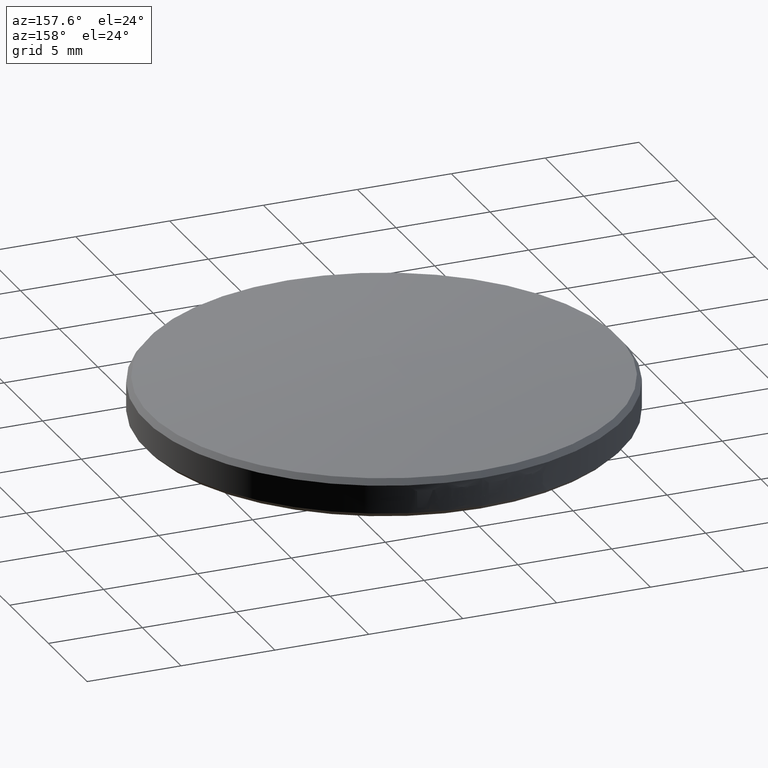
[diagram: clean part render]
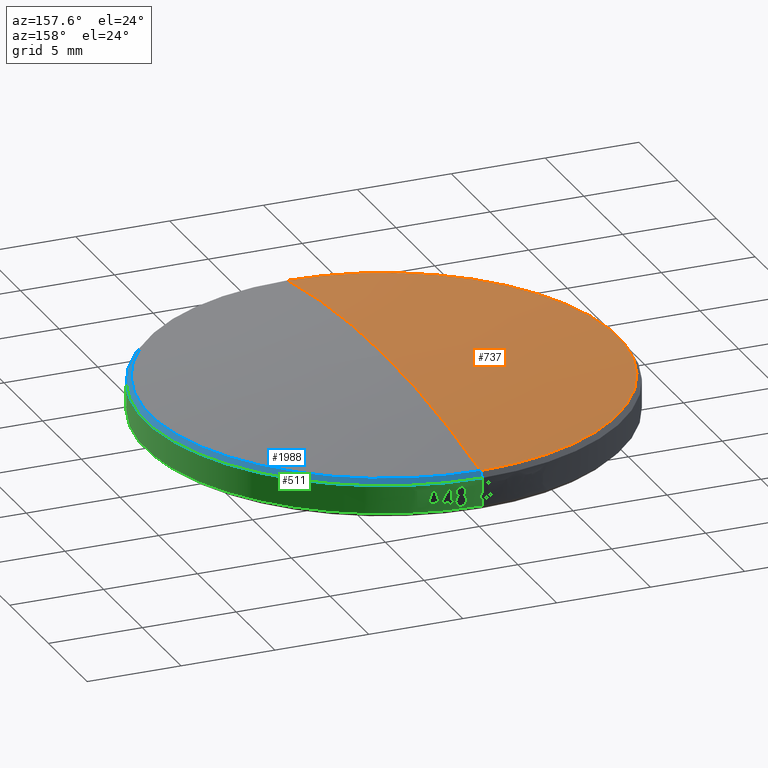
[diagram: same view with three faces highlighted in distinct colors, each labeled with its STEP entity id]
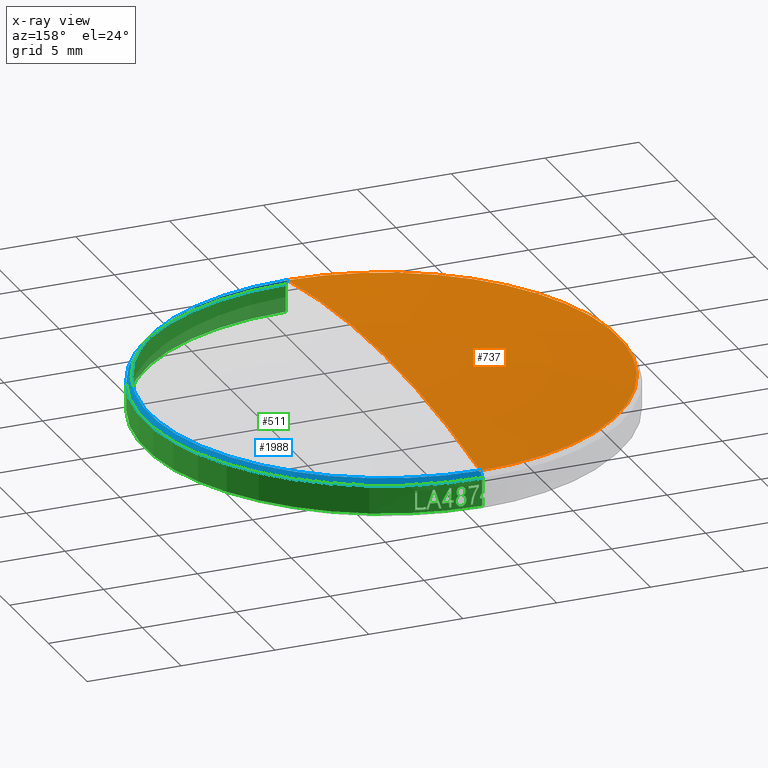
[diagram: x-ray of the same camera — body ghosted, the three highlighted faces saturated]
A machine part, auxiliary view with three faces highlighted in distinct colors.
The next image is the same camera in x-ray (body ghosted, the three faces saturated) — at least one of them is partly hidden behind the body in this view.
Their STEP definitions:

[orange] entity #737 — the highlighted toroidal blend (fillet) surface has major radius 0.0463 mm and minor (blend) radius 69.01 mm.
#3 = ORIENTED_EDGE ( 'NONE', *, *, #2574, .T. ) ;
#190 = EDGE_CURVE ( 'NONE', #516, #196, #244, .T. ) ;
#196 = VERTEX_POINT ( 'NONE', #910 ) ;
#198 = FACE_OUTER_BOUND ( 'NONE', #1323, .T. ) ;
#244 = CIRCLE ( 'NONE', #2479, 2.716929133858268397 ) ;
#294 = DIRECTION ( 'NONE',  ( -0.0000000000000000000, 1.224646799147353207E-16, -1.000000000000000000 ) ) ;
#371 = ORIENTED_EDGE ( 'NONE', *, *, #190, .F. ) ;
#414 = TOROIDAL_SURFACE ( 'NONE', #2044, 0.001822084931447549589, 2.716929133858268397 ) ;
#494 = CARTESIAN_POINT ( 'NONE',  ( -0.01648550022812553251, 0.8537685930331552209, 0.8165851593906512385 ) ) ;
#505 = DIRECTION ( 'NONE',  ( 0.0000000000000000000, 0.0000000000000000000, 1.000000000000000000 ) ) ;
#516 = VERTEX_POINT ( 'NONE', #2307 ) ;
#538 = ORIENTED_EDGE ( 'NONE', *, *, #1987, .T. ) ;
#675 = DIRECTION ( 'NONE',  ( 0.0000000000000000000, -1.224646799147368245E-16, 1.000000000000000000 ) ) ;
#737 = ADVANCED_FACE ( 'NONE', ( #198 ), #414, .T. ) ;
#770 = CARTESIAN_POINT ( 'NONE',  ( -0.01648550022812553251, 0.8537685930331554429, -1.856063734372559892 ) ) ;
#902 = DIRECTION ( 'NONE',  ( 0.0000000000000000000, 1.000000000000000000, 0.0000000000000000000 ) ) ;
#910 = CARTESIAN_POINT ( 'NONE',  ( -0.01648550022812547353, 0.3634264889887492411, 0.8165851593906510164 ) ) ;
#993 = DIRECTION ( 'NONE',  ( 0.0000000000000000000, 1.000000000000000000, 1.224646799147353207E-16 ) ) ;
#1116 = DIRECTION ( 'NONE',  ( 1.000000000000000000, 1.224646799147353207E-16, 1.499759782661857608E-32 ) ) ;
#1155 = DIRECTION ( 'NONE',  ( -1.000000000000000000, 0.0000000000000000000, 0.0000000000000000000 ) ) ;
#1323 = EDGE_LOOP ( 'NONE', ( #371, #3, #538 ) ) ;
#1822 = AXIS2_PLACEMENT_3D ( 'NONE', #494, #675, #902 ) ;
#1984 = CARTESIAN_POINT ( 'NONE',  ( -0.01648550022812553251, 1.344110697077561367, 0.8165851593906510164 ) ) ;
#1987 = EDGE_CURVE ( 'NONE', #2038, #196, #2321, .T. ) ;
#2003 = CARTESIAN_POINT ( 'NONE',  ( -0.01648550022812553251, 0.8555906779646029747, -1.856063734372559892 ) ) ;
#2038 = VERTEX_POINT ( 'NONE', #1984 ) ;
#2044 = AXIS2_PLACEMENT_3D ( 'NONE', #770, #294, #993 ) ;
#2307 = CARTESIAN_POINT ( 'NONE',  ( -0.01648550022812553251, 0.8537685930331552209, 0.8608647885029209190 ) ) ;
#2321 = CIRCLE ( 'NONE', #1822, 0.4903421040444047585 ) ;
#2376 = AXIS2_PLACEMENT_3D ( 'NONE', #2003, #1155, #505 ) ;
#2479 = AXIS2_PLACEMENT_3D ( 'NONE', #2640, #1116, #2630 ) ;
#2574 = EDGE_CURVE ( 'NONE', #516, #2038, #2579, .T. ) ;
#2579 = CIRCLE ( 'NONE', #2376, 2.716929133858268397 ) ;
#2630 = DIRECTION ( 'NONE',  ( -1.225442246831898799E-16, 1.000000000000000000, 0.0000000000000000000 ) ) ;
#2640 = CARTESIAN_POINT ( 'NONE',  ( -0.01648550022812553251, 0.8519465081017079111, -1.856063734372559892 ) ) ;

[blue] entity #1988 — the highlighted conical surface has half-angle 39.717 deg.
#19 = LINE ( 'NONE', #2224, #1071 ) ;
#50 = VECTOR ( 'NONE', #2502, 39.37007874015748143 ) ;
#106 = DIRECTION ( 'NONE',  ( 0.0000000000000000000, 1.000000000000000000, 0.0000000000000000000 ) ) ;
#196 = VERTEX_POINT ( 'NONE', #910 ) ;
#351 = CARTESIAN_POINT ( 'NONE',  ( -0.01648550022812553251, 1.353768593033155110, 0.8049592766918979292 ) ) ;
#364 = EDGE_CURVE ( 'NONE', #196, #2038, #1475, .T. ) ;
#586 = VERTEX_POINT ( 'NONE', #1073 ) ;
#858 = VERTEX_POINT ( 'NONE', #2035 ) ;
#910 = CARTESIAN_POINT ( 'NONE',  ( -0.01648550022812547353, 0.3634264889887492411, 0.8165851593906510164 ) ) ;
#1058 = CIRCLE ( 'NONE', #2261, 0.4999999999999999445 ) ;
#1062 = CARTESIAN_POINT ( 'NONE',  ( -0.01648550022812553251, 0.8537685930331552209, 0.8049592766918979292 ) ) ;
#1071 = VECTOR ( 'NONE', #1389, 39.37007874015748143 ) ;
#1073 = CARTESIAN_POINT ( 'NONE',  ( -0.01648550022812553251, 1.353768593033155110, 0.8049592766918979292 ) ) ;
#1302 = EDGE_LOOP ( 'NONE', ( #1680, #1501, #1474, #1510 ) ) ;
#1354 = CONICAL_SURFACE ( 'NONE', #2340, 0.4999999999999998335, 0.6931961697002844147 ) ;
#1389 = DIRECTION ( 'NONE',  ( 7.825480308992635668E-17, -0.6389989598993798259, -0.7692075982772861309 ) ) ;
#1464 = DIRECTION ( 'NONE',  ( -0.0000000000000000000, 1.224646799147368245E-16, -1.000000000000000000 ) ) ;
#1474 = ORIENTED_EDGE ( 'NONE', *, *, #2730, .F. ) ;
#1475 = CIRCLE ( 'NONE', #2578, 0.4903421040444047585 ) ;
#1501 = ORIENTED_EDGE ( 'NONE', *, *, #2204, .T. ) ;
#1510 = ORIENTED_EDGE ( 'NONE', *, *, #1795, .F. ) ;
#1584 = DIRECTION ( 'NONE',  ( 0.0000000000000000000, 1.000000000000000000, 0.0000000000000000000 ) ) ;
#1668 = LINE ( 'NONE', #351, #50 ) ;
#1680 = ORIENTED_EDGE ( 'NONE', *, *, #364, .F. ) ;
#1692 = DIRECTION ( 'NONE',  ( -0.0000000000000000000, 1.224646799147368245E-16, -1.000000000000000000 ) ) ;
#1795 = EDGE_CURVE ( 'NONE', #2038, #586, #1668, .T. ) ;
#1842 = CARTESIAN_POINT ( 'NONE',  ( -0.01648550022812553251, 0.8537685930331552209, 0.8165851593906512385 ) ) ;
#1851 = DIRECTION ( 'NONE',  ( 0.0000000000000000000, -1.224646799147368245E-16, 1.000000000000000000 ) ) ;
#1984 = CARTESIAN_POINT ( 'NONE',  ( -0.01648550022812553251, 1.344110697077561367, 0.8165851593906510164 ) ) ;
#1988 = ADVANCED_FACE ( 'NONE', ( #2798 ), #1354, .T. ) ;
#2035 = CARTESIAN_POINT ( 'NONE',  ( -0.01648550022812547006, 0.3537685930331552764, 0.8049592766918979292 ) ) ;
#2038 = VERTEX_POINT ( 'NONE', #1984 ) ;
#2204 = EDGE_CURVE ( 'NONE', #196, #858, #19, .T. ) ;
#2224 = CARTESIAN_POINT ( 'NONE',  ( -0.01648550022812547006, 0.3537685930331552764, 0.8049592766918979292 ) ) ;
#2261 = AXIS2_PLACEMENT_3D ( 'NONE', #1062, #1692, #2551 ) ;
#2340 = AXIS2_PLACEMENT_3D ( 'NONE', #2756, #1464, #1584 ) ;
#2502 = DIRECTION ( 'NONE',  ( 0.0000000000000000000, 0.6389989598993800479, -0.7692075982772859088 ) ) ;
#2551 = DIRECTION ( 'NONE',  ( 0.0000000000000000000, -1.000000000000000000, 0.0000000000000000000 ) ) ;
#2578 = AXIS2_PLACEMENT_3D ( 'NONE', #1842, #1851, #106 ) ;
#2730 = EDGE_CURVE ( 'NONE', #586, #858, #1058, .T. ) ;
#2756 = CARTESIAN_POINT ( 'NONE',  ( -0.01648550022812553251, 0.8537685930331552209, 0.8049592766918979292 ) ) ;
#2798 = FACE_OUTER_BOUND ( 'NONE', #1302, .T. ) ;

[green] entity #511 — the highlighted cylindrical surface (partial cylindrical patch) has radius 12.7 mm, axis along (-0, 0, -1).
#6 = CARTESIAN_POINT ( 'NONE',  ( 0.03726983955024021355, 1.350870570356184297, 0.7595190701034950642 ) ) ;
#14 = CARTESIAN_POINT ( 'NONE',  ( 0.02703234375072949974, 1.351871190150889301, 0.7512843981388971359 ) ) ;
#33 = CARTESIAN_POINT ( 'NONE',  ( -0.01648550022812547006, 0.3537685930331552764, 0.7360616388966217949 ) ) ;
#38 = DIRECTION ( 'NONE',  ( 0.0000000000000000000, 0.0000000000000000000, 1.000000000000000000 ) ) ;
#40 = CARTESIAN_POINT ( 'NONE',  ( 0.04664088860826226535, 1.349767644476277617, 0.7927809061881395669 ) ) ;
#59 = CARTESIAN_POINT ( 'NONE',  ( -0.01648550022812553251, 0.8537685930331552209, 0.7518096703926848701 ) ) ;
#61 = ORIENTED_EDGE ( 'NONE', *, *, #2628, .T. ) ;
#65 = AXIS2_PLACEMENT_3D ( 'NONE', #1933, #637, #855 ) ;
#69 = CARTESIAN_POINT ( 'NONE',  ( 0.007297099028390484007, 1.353202672471142565, 0.7551400584918331882 ) ) ;
#83 = DIRECTION ( 'NONE',  ( 0.0000000000000000000, 1.000000000000000000, 0.0000000000000000000 ) ) ;
#88 = DIRECTION ( 'NONE',  ( 0.0000000000000000000, 0.0000000000000000000, -1.000000000000000000 ) ) ;
#98 = CARTESIAN_POINT ( 'NONE',  ( -0.01648550022812553251, 0.8537685930331552209, 0.7518096703926848701 ) ) ;
#101 = LINE ( 'NONE', #1176, #752 ) ;
#104 = CARTESIAN_POINT ( 'NONE',  ( -0.01648550022812553251, 0.8537685930331552209, 0.7518096703926848701 ) ) ;
#110 = AXIS2_PLACEMENT_3D ( 'NONE', #1450, #132, #1876 ) ;
#114 = ORIENTED_EDGE ( 'NONE', *, *, #2184, .T. ) ;
#123 = DIRECTION ( 'NONE',  ( -0.0000000000000000000, 1.224646799147353207E-16, -1.000000000000000000 ) ) ;
#130 = ORIENTED_EDGE ( 'NONE', *, *, #2288, .T. ) ;
#131 = DIRECTION ( 'NONE',  ( -0.0000000000000000000, 1.224646799147353207E-16, -1.000000000000000000 ) ) ;
#132 = DIRECTION ( 'NONE',  ( -0.0000000000000000000, 1.224646799147353207E-16, -1.000000000000000000 ) ) ;
#148 = CARTESIAN_POINT ( 'NONE',  ( 0.09033040979734935361, 1.342227132994510574, 0.7558367576717253122 ) ) ;
#150 = LINE ( 'NONE', #2104, #1145 ) ;
#154 = DIRECTION ( 'NONE',  ( -0.0000000000000000000, 1.224646799147353207E-16, -1.000000000000000000 ) ) ;
#168 = CARTESIAN_POINT ( 'NONE',  ( 0.08734119559976727398, 1.342888782822279081, 0.7787736460871292898 ) ) ;
#169 = CARTESIAN_POINT ( 'NONE',  ( 0.07068868078827086898, 1.346110610500809823, 0.7518096703926850921 ) ) ;
#174 = ORIENTED_EDGE ( 'NONE', *, *, #1270, .T. ) ;
#178 = CARTESIAN_POINT ( 'NONE',  ( 0.08803047141245907981, 1.342722999570231668, 0.7638909322298061966 ) ) ;
#183 = CARTESIAN_POINT ( 'NONE',  ( 0.07063523831278907539, 1.346138924502123357, 0.7652916582399071910 ) ) ;
#186 = CARTESIAN_POINT ( 'NONE',  ( 0.03552717662247594638, 1.351055951875872685, 0.7782728981906982257 ) ) ;
#206 = CARTESIAN_POINT ( 'NONE',  ( 0.03618269482879030163, 1.350986917107039220, 0.7812738096283275979 ) ) ;
#207 = ORIENTED_EDGE ( 'NONE', *, *, #775, .T. ) ;
#208 = CARTESIAN_POINT ( 'NONE',  ( 0.03474733269791552281, 1.351137655953457140, 0.7885103916293454418 ) ) ;
#210 = DIRECTION ( 'NONE',  ( 0.0000000000000000000, 0.0000000000000000000, -1.000000000000000000 ) ) ;
#211 = EDGE_CURVE ( 'NONE', #727, #519, #1408, .T. ) ;
#221 = CARTESIAN_POINT ( 'NONE',  ( 0.03007705446707112026, 1.351596393210089397, 0.7516758015985228747 ) ) ;
#223 = LINE ( 'NONE', #566, #2284 ) ;
#224 = CARTESIAN_POINT ( 'NONE',  ( 0.001290273949197723660, 1.353452946246667121, 0.7645488228899947059 ) ) ;
#231 = CARTESIAN_POINT ( 'NONE',  ( 0.03761747703957835087, 1.350832842563649772, 0.7612580557361454670 ) ) ;
#233 = ORIENTED_EDGE ( 'NONE', *, *, #702, .T. ) ;
#243 = CARTESIAN_POINT ( 'NONE',  ( 0.03770507058154962815, 1.350823305317444545, 0.7619457110869910510 ) ) ;
#247 = EDGE_CURVE ( 'NONE', #2488, #648, #2110, .T. ) ;
#249 = DIRECTION ( 'NONE',  ( 0.1262527776727755957, 0.9919981028862447925, 0.0000000000000000000 ) ) ;
#254 = AXIS2_PLACEMENT_3D ( 'NONE', #98, #2215, #1834 ) ;
#259 = B_SPLINE_CURVE_WITH_KNOTS ( 'NONE', 3,
 ( #792, #2051, #1192, #2726, #1663, #2079, #784, #2287, #1007, #2519, #2733, #1452, #362, #1879, #2086, #842, #821, #2768, #598, #1253 ),
 .UNSPECIFIED., .F., .F.,
 ( 4, 1, 2, 2, 2, 2, 2, 1, 2, 2, 4 ),
 ( 0.0000000000000000000, 0.1249999999999643896, 0.1874999999999579503, 0.2499999999999515388, 0.3749999999999595324, 0.4999999999999675815, 0.7499999999999977796, 0.8125000000000071054, 0.8437500000000078826, 0.8750000000000085487, 1.000000000000000000 ),
 .UNSPECIFIED. ) ;
#262 = CARTESIAN_POINT ( 'NONE',  ( 0.01862648061785488959, 1.352534381970118105, 0.7780068740666946647 ) ) ;
#271 = CIRCLE ( 'NONE', #2134, 0.4999999999999997780 ) ;
#272 = ORIENTED_EDGE ( 'NONE', *, *, #1602, .T. ) ;
#280 = ORIENTED_EDGE ( 'NONE', *, *, #2475, .T. ) ;
#291 = CARTESIAN_POINT ( 'NONE',  ( 0.004677349264334644367, 1.353321572387453653, 0.7674450340589363817 ) ) ;
#293 = LINE ( 'NONE', #593, #2152 ) ;
#295 = LINE ( 'NONE', #840, #1594 ) ;
#298 = ORIENTED_EDGE ( 'NONE', *, *, #211, .T. ) ;
#299 = CARTESIAN_POINT ( 'NONE',  ( 0.01789268781001725206, 1.352585333116338440, 0.7821605578068658859 ) ) ;
#304 = CARTESIAN_POINT ( 'NONE',  ( 0.02632909713538980276, 1.351932728241949322, 0.7927573116769607298 ) ) ;
#313 = CARTESIAN_POINT ( 'NONE',  ( -0.002742892467521419395, 1.353579739179619823, 0.7835379342858900253 ) ) ;
#319 = CARTESIAN_POINT ( 'NONE',  ( -0.01648550022812553251, 0.8537685930331552209, 0.7459041585816611475 ) ) ;
#321 = VERTEX_POINT ( 'NONE', #746 ) ;
#325 = EDGE_CURVE ( 'NONE', #1358, #321, #660, .T. ) ;
#329 = VECTOR ( 'NONE', #2030, 39.37007874015748143 ) ;
#333 = CARTESIAN_POINT ( 'NONE',  ( -0.003318507395855935758, 1.353595229299219493, 0.7844210905647867049 ) ) ;
#336 = CARTESIAN_POINT ( 'NONE',  ( 0.01930145713870697402, 1.352486393274275001, 0.7881851690157611889 ) ) ;
#337 = B_SPLINE_CURVE_WITH_KNOTS ( 'NONE', 3,
 ( #1026, #2541, #168, #2750 ),
 .UNSPECIFIED., .F., .F.,
 ( 4, 4 ),
 ( 0.0000000000000000000, 1.000000000000000000 ),
 .UNSPECIFIED. ) ;
#341 = DIRECTION ( 'NONE',  ( 0.1992137392491899195, 0.9799560633489421413, 0.0000000000000000000 ) ) ;
#346 = CARTESIAN_POINT ( 'NONE',  ( -0.01202074540677856851, 1.353748658600158805, 0.7617898432146547050 ) ) ;
#352 = VERTEX_POINT ( 'NONE', #2481 ) ;
#362 = CARTESIAN_POINT ( 'NONE',  ( 0.02295600886493381204, 1.352210643908419163, 0.7520805998053939900 ) ) ;
#363 = LINE ( 'NONE', #2671, #1789 ) ;
#370 = CARTESIAN_POINT ( 'NONE',  ( -0.01648550022812553251, 0.8537685930331552209, 0.7870029113964728262 ) ) ;
#372 = CARTESIAN_POINT ( 'NONE',  ( 0.04664088860826226535, 1.349767644476277617, 0.7518096703926850921 ) ) ;
#377 = ORIENTED_EDGE ( 'NONE', *, *, #247, .T. ) ;
#378 = CARTESIAN_POINT ( 'NONE',  ( -0.01648550022812553251, 0.8537685930331552209, 0.7565371206767758094 ) ) ;
#383 = CARTESIAN_POINT ( 'NONE',  ( 0.03739542001219489653, 1.350858164387810367, 0.7681299160417698335 ) ) ;
#387 = VERTEX_POINT ( 'NONE', #1437 ) ;
#396 = ORIENTED_EDGE ( 'NONE', *, *, #325, .T. ) ;
#397 = CARTESIAN_POINT ( 'NONE',  ( 0.03320631299860873908, 1.351293212653968512, 0.7751538229331802476 ) ) ;
#409 = B_SPLINE_CURVE_WITH_KNOTS ( 'NONE', 3,
 ( #2127, #835, #1315, #2571, #2791, #1516, #1523, #208, #1732, #1945, #649, #2155, #661, #864, #2375, #1081, #2600 ),
 .UNSPECIFIED., .F., .F.,
 ( 4, 1, 2, 2, 2, 2, 2, 2, 4 ),
 ( 0.0000000000000000000, 0.1250000000000195954, 0.1875000000000163480, 0.2500000000000131006, 0.5000000000000005551, 0.7499999999999880096, 0.8124999999999876765, 0.8749999999999873435, 1.000000000000000000 ),
 .UNSPECIFIED. ) ;
#424 = CARTESIAN_POINT ( 'NONE',  ( -0.009394562518343391178, 1.353718309107077689, 0.7917303616805637656 ) ) ;
#426 = B_SPLINE_CURVE_WITH_KNOTS ( 'NONE', 3,
 ( #2114, #647, #1080, #2782, #397, #2805, #1057, #2570, #1277, #186, #1286, #1716, #1522, #1048, #206, #2373 ),
 .UNSPECIFIED., .F., .F.,
 ( 4, 1, 2, 2, 2, 1, 2, 2, 4 ),
 ( 0.0000000000000000000, 0.1250000000000031364, 0.1875000000000019151, 0.2500000000000007216, 0.4999999999999645839, 0.6249999999999464873, 0.6874999999999386047, 0.7499999999999308331, 1.000000000000000000 ),
 .UNSPECIFIED. ) ;
#427 = CARTESIAN_POINT ( 'NONE',  ( 0.06638596041898468803, 1.346853089859220809, 0.7518096703926850921 ) ) ;
#430 = CARTESIAN_POINT ( 'NONE',  ( -0.002727662379477728376, 1.353579940858818276, 0.7761739221943050326 ) ) ;
#440 = VERTEX_POINT ( 'NONE', #808 ) ;
#449 = DIRECTION ( 'NONE',  ( 0.1626340600355542232, 0.9866864560316777055, 0.0000000000000000000 ) ) ;
#450 = CARTESIAN_POINT ( 'NONE',  ( -0.0009099965985161160556, 1.353526009736667257, 0.7714681347886851448 ) ) ;
#454 = CARTESIAN_POINT ( 'NONE',  ( 0.01789268781001725206, 1.352585333116338440, 0.7821605578068658859 ) ) ;
#467 = CARTESIAN_POINT ( 'NONE',  ( 0.03214838320157822199, 1.351398167941160189, 0.7525622786633427985 ) ) ;
#477 = CARTESIAN_POINT ( 'NONE',  ( 0.02750671627326138624, 1.351829745537786343, 0.7512997878147692488 ) ) ;
#484 = VERTEX_POINT ( 'NONE', #2075 ) ;
#493 = AXIS2_PLACEMENT_3D ( 'NONE', #577, #2294, #994 ) ;
#498 = CARTESIAN_POINT ( 'NONE',  ( 0.002645303621720569882, 1.353402474938816269, 0.7574226293159669332 ) ) ;
#507 = CARTESIAN_POINT ( 'NONE',  ( -0.004681426657971932831, 1.353629347225564494, 0.7802984185185114496 ) ) ;
#508 = EDGE_CURVE ( 'NONE', #1377, #850, #1936, .T. ) ;
#511 = ADVANCED_FACE ( 'NONE', ( #1508, #2165, #2163, #1258, #2194, #1801 ), #1295, .T. ) ;
#512 = AXIS2_PLACEMENT_3D ( 'NONE', #378, #2533, #1473 ) ;
#514 = DIRECTION ( 'NONE',  ( -0.0000000000000000000, 1.224646799147353207E-16, -1.000000000000000000 ) ) ;
#515 = CARTESIAN_POINT ( 'NONE',  ( 0.002634132114608781633, 1.353403945104518113, 0.7731971995735252845 ) ) ;
#518 = CARTESIAN_POINT ( 'NONE',  ( 0.01792261882178697308, 1.352583270286709327, 0.7836740505954181701 ) ) ;
#519 = VERTEX_POINT ( 'NONE', #2501 ) ;
#527 = CARTESIAN_POINT ( 'NONE',  ( 0.02107888985403611956, 1.352356201274496961, 0.7905301444316873427 ) ) ;
#553 = VECTOR ( 'NONE', #2512, 39.37007874015748143 ) ;
#560 = CARTESIAN_POINT ( 'NONE',  ( -0.01648550022812547006, 0.3537685930331552764, 0.7459041585816611475 ) ) ;
#566 = CARTESIAN_POINT ( 'NONE',  ( -0.01648550022812553251, 1.353768593033155110, 0.7360616388966217949 ) ) ;
#569 = CARTESIAN_POINT ( 'NONE',  ( -0.009394562518343391178, 1.353718309107077689, 0.7917303616805637656 ) ) ;
#571 = CARTESIAN_POINT ( 'NONE',  ( -0.004061308425576824234, 1.353614369028570019, 0.7854826423373827415 ) ) ;
#577 = CARTESIAN_POINT ( 'NONE',  ( -0.01648550022812553251, 0.8537685930331552209, 0.7360616388966217949 ) ) ;
#586 = VERTEX_POINT ( 'NONE', #1073 ) ;
#588 = DIRECTION ( 'NONE',  ( 0.05722339971773152817, 0.9983613987553529023, 0.0000000000000000000 ) ) ;
#593 = CARTESIAN_POINT ( 'NONE',  ( 0.04194851519089724812, 1.350342319525011936, 0.7665172934987456443 ) ) ;
#594 = EDGE_CURVE ( 'NONE', #586, #2719, #1082, .T. ) ;
#598 = CARTESIAN_POINT ( 'NONE',  ( 0.02609016864841273362, 1.351953505379399623, 0.7513157602711159067 ) ) ;
#604 = B_SPLINE_CURVE_WITH_KNOTS ( 'NONE', 3,
 ( #1790, #715, #1606, #1818 ),
 .UNSPECIFIED., .F., .F.,
 ( 4, 4 ),
 ( 0.0000000000000000000, 1.000000000000000000 ),
 .UNSPECIFIED. ) ;
#606 = CARTESIAN_POINT ( 'NONE',  ( 0.03251905464390371370, 1.351362821953421056, 0.7735948512398124199 ) ) ;
#624 = B_SPLINE_CURVE_WITH_KNOTS ( 'NONE', 3,
 ( #14, #477, #869, #676, #1776, #2422, #221, #1104, #467, #666, #1979, #1763, #1325, #1551, #6, #2175, #2636, #1352, #231, #243, #1558, #1342 ),
 .UNSPECIFIED., .F., .F.,
 ( 4, 1, 2, 2, 2, 2, 2, 2, 1, 2, 2, 4 ),
 ( 0.0000000000000000000, 0.06250000000000160982, 0.09375000000000585643, 0.1250000000000101030, 0.2500000000000269784, 0.3750000000000438538, 0.5000000000000607292, 0.7500000000000945910, 0.8125000000001030287, 0.8437500000000963674, 0.8750000000000895950, 1.000000000000000000 ),
 .UNSPECIFIED. ) ;
#627 = ORIENTED_EDGE ( 'NONE', *, *, #1901, .F. ) ;
#630 = CARTESIAN_POINT ( 'NONE',  ( -0.007450626561180629000, 1.353687591510429389, 0.7851411511106285435 ) ) ;
#632 = EDGE_CURVE ( 'NONE', #387, #2029, #1914, .T. ) ;
#637 = DIRECTION ( 'NONE',  ( -0.0000000000000000000, 1.224646799147353207E-16, -1.000000000000000000 ) ) ;
#641 = B_SPLINE_CURVE_WITH_KNOTS ( 'NONE', 3,
 ( #2478, #304, #1404, #1829, #2695, #2469, #527, #1435, #336, #983, #2489, #2274, #2720, #518, #1201 ),
 .UNSPECIFIED., .F., .F.,
 ( 4, 2, 2, 2, 1, 2, 2, 4 ),
 ( 0.0000000000000000000, 0.1250000000000104639, 0.2500000000000209277, 0.5000000000000340838, 0.6250000000000416334, 0.6875000000000445199, 0.7500000000000474065, 1.000000000000000000 ),
 .UNSPECIFIED. ) ;
#645 = CARTESIAN_POINT ( 'NONE',  ( 0.01793353638700995872, 1.352582530853013942, 0.7700808181933386232 ) ) ;
#647 = CARTESIAN_POINT ( 'NONE',  ( 0.03178329461686816432, 1.351433485044670535, 0.7742390745038575384 ) ) ;
#648 = VERTEX_POINT ( 'NONE', #874 ) ;
#649 = CARTESIAN_POINT ( 'NONE',  ( 0.03056101500623791337, 1.351550384991290210, 0.7921125114491451846 ) ) ;
#658 = ORIENTED_EDGE ( 'NONE', *, *, #2254, .T. ) ;
#660 = CIRCLE ( 'NONE', #1384, 0.4999999999999998335 ) ;
#661 = CARTESIAN_POINT ( 'NONE',  ( 0.02965109074110855794, 1.351635552127776529, 0.7924404179626864941 ) ) ;
#666 = CARTESIAN_POINT ( 'NONE',  ( 0.03277792886503300140, 1.351336145438994940, 0.7529587777027224593 ) ) ;
#668 = CARTESIAN_POINT ( 'NONE',  ( 0.002923093263347333395, 1.353391786089747972, 0.7553419513667889440 ) ) ;
#672 = CARTESIAN_POINT ( 'NONE',  ( 0.01790580274867759752, 1.352584429241646236, 0.7816434219210153245 ) ) ;
#674 = ORIENTED_EDGE ( 'NONE', *, *, #1920, .T. ) ;
#676 = CARTESIAN_POINT ( 'NONE',  ( 0.02868195668260052275, 1.351724342821676306, 0.7514055513599919855 ) ) ;
#687 = CARTESIAN_POINT ( 'NONE',  ( 0.04664088860826225841, 1.349767644476277617, 0.7665172934987456443 ) ) ;
#692 = CARTESIAN_POINT ( 'NONE',  ( 0.01807890841171356372, 1.352572464781475636, 0.7799828836573827751 ) ) ;
#700 = CARTESIAN_POINT ( 'NONE',  ( 0.003207114546574935977, 1.353380643451612464, 0.7518096703926850921 ) ) ;
#702 = EDGE_CURVE ( 'NONE', #1609, #2338, #847, .T. ) ;
#705 = EDGE_CURVE ( 'NONE', #2312, #519, #710, .T. ) ;
#709 = CARTESIAN_POINT ( 'NONE',  ( 0.006900621578075729658, 1.353221849060717297, 0.7580133277314958784 ) ) ;
#710 = CIRCLE ( 'NONE', #1992, 0.4999999999999999445 ) ;
#715 = CARTESIAN_POINT ( 'NONE',  ( 0.07184974810176583682, 1.345905031678430452, 0.7558367576717253122 ) ) ;
#718 = ORIENTED_EDGE ( 'NONE', *, *, #2219, .T. ) ;
#722 = EDGE_CURVE ( 'NONE', #2652, #1079, #1361, .T. ) ;
#723 = CARTESIAN_POINT ( 'NONE',  ( 0.01212619963073978228, 1.352949292410831506, 0.7870029113964728262 ) ) ;
#727 = VERTEX_POINT ( 'NONE', #723 ) ;
#730 = CARTESIAN_POINT ( 'NONE',  ( -0.0005070600934115738730, 1.353513351712541057, 0.7797206018042696085 ) ) ;
#744 = CIRCLE ( 'NONE', #1964, 0.5000000000000000000 ) ;
#746 = CARTESIAN_POINT ( 'NONE',  ( -0.01648550022812553251, 1.353768593033155110, 0.7459041585816611475 ) ) ;
#752 = VECTOR ( 'NONE', #761, 39.37007874015748143 ) ;
#754 = CARTESIAN_POINT ( 'NONE',  ( 0.04664088860826226535, 1.349767644476277617, 0.7617898432146547050 ) ) ;
#761 = DIRECTION ( 'NONE',  ( 0.0000000000000000000, 0.0000000000000000000, 1.000000000000000000 ) ) ;
#764 = ORIENTED_EDGE ( 'NONE', *, *, #722, .T. ) ;
#771 = CARTESIAN_POINT ( 'NONE',  ( 0.05057130661699549279, 1.349251574230023287, 0.7927809061881395669 ) ) ;
#775 = EDGE_CURVE ( 'NONE', #2742, #1723, #2365, .T. ) ;
#784 = CARTESIAN_POINT ( 'NONE',  ( 0.01718105975686489220, 1.352633921052761146, 0.7583068315712935270 ) ) ;
#785 = ORIENTED_EDGE ( 'NONE', *, *, #705, .F. ) ;
#791 = CARTESIAN_POINT ( 'NONE',  ( 0.03777311823421229675, 1.350815876822694106, 0.7636939551346357824 ) ) ;
#792 = CARTESIAN_POINT ( 'NONE',  ( 0.01632043211722284878, 1.352691203066968439, 0.7635544296922234242 ) ) ;
#797 = CARTESIAN_POINT ( 'NONE',  ( 0.1130744429764692499, 1.336691175976655543, 0.7922556339343517218 ) ) ;
#801 = CARTESIAN_POINT ( 'NONE',  ( 0.09574619557657289282, 1.341009854070027485, 0.7518096703926850921 ) ) ;
#808 = CARTESIAN_POINT ( 'NONE',  ( 0.09676968435710818495, 1.340772969979158180, 0.7518096703926850921 ) ) ;
#809 = DIRECTION ( 'NONE',  ( 0.0000000000000000000, 0.0000000000000000000, -1.000000000000000000 ) ) ;
#812 = EDGE_CURVE ( 'NONE', #2406, #2195, #641, .T. ) ;
#813 = VERTEX_POINT ( 'NONE', #1413 ) ;
#818 = B_SPLINE_CURVE_WITH_KNOTS ( 'NONE', 3,
 ( #791, #1488, #383, #2538, #2300, #1705, #606, #2112 ),
 .UNSPECIFIED., .F., .F.,
 ( 4, 2, 2, 4 ),
 ( 0.0000000000000000000, 0.5000000000000135447, 0.7500000000000067724, 1.000000000000000000 ),
 .UNSPECIFIED. ) ;
#821 = CARTESIAN_POINT ( 'NONE',  ( 0.02463384837669500144, 1.352074943696484288, 0.7515438162436102187 ) ) ;
#822 = VECTOR ( 'NONE', #38, 39.37007874015748143 ) ;
#825 = CARTESIAN_POINT ( 'NONE',  ( -0.006256513870867876081, 1.353664108449404102, 0.7831801930289832292 ) ) ;
#834 = CIRCLE ( 'NONE', #2773, 0.5000000000000000000 ) ;
#835 = CARTESIAN_POINT ( 'NONE',  ( 0.03619178565436688422, 1.350985953717872778, 0.7830605281972645715 ) ) ;
#840 = CARTESIAN_POINT ( 'NONE',  ( 0.04664088860826226535, 1.349767644476277617, 0.7927809061881395669 ) ) ;
#842 = CARTESIAN_POINT ( 'NONE',  ( 0.02439288051472863691, 1.352094784157071405, 0.7516012355220929031 ) ) ;
#845 = CARTESIAN_POINT ( 'NONE',  ( 0.1171284729443140410, 1.335585265817601730, 0.7922556339343517218 ) ) ;
#847 = CIRCLE ( 'NONE', #2099, 0.5000000000000001110 ) ;
#850 = VERTEX_POINT ( 'NONE', #1849 ) ;
#855 = DIRECTION ( 'NONE',  ( 0.2672279463448792303, 0.9636333455688934624, 0.0000000000000000000 ) ) ;
#857 = CARTESIAN_POINT ( 'NONE',  ( -0.009394562518343391178, 1.353718309107077689, 0.7878646861878435548 ) ) ;
#858 = VERTEX_POINT ( 'NONE', #2035 ) ;
#863 = DIRECTION ( 'NONE',  ( -0.0000000000000000000, 1.224646799147353207E-16, -1.000000000000000000 ) ) ;
#864 = CARTESIAN_POINT ( 'NONE',  ( 0.02926106935236864187, 1.351671503683476327, 0.7925414703336035593 ) ) ;
#869 = CARTESIAN_POINT ( 'NONE',  ( 0.02814743319343539912, 1.351772753754186818, 0.7513398993336080078 ) ) ;
#874 = CARTESIAN_POINT ( 'NONE',  ( 0.04664088860826226535, 1.349767644476277617, 0.7617898432146547050 ) ) ;
#878 = CARTESIAN_POINT ( 'NONE',  ( 0.02163833036245405364, 1.352314287082894584, 0.7735547605836037288 ) ) ;
#886 = CARTESIAN_POINT ( 'NONE',  ( 0.003074038690983296913, 1.353385888744550458, 0.7537372679141037812 ) ) ;
#888 = EDGE_LOOP ( 'NONE', ( #174, #130, #298, #785, #1695, #1894, #912 ) ) ;
#891 = CARTESIAN_POINT ( 'NONE',  ( 0.01958239010473746683, 1.352466131863417020, 0.7764276613972148633 ) ) ;
#904 = EDGE_CURVE ( 'NONE', #2065, #1875, #271, .T. ) ;
#906 = CIRCLE ( 'NONE', #110, 0.4999999999999998335 ) ;
#912 = ORIENTED_EDGE ( 'NONE', *, *, #1869, .T. ) ;
#914 = CARTESIAN_POINT ( 'NONE',  ( 0.07416967204946876835, 1.345481557819848462, 0.7638909322298061966 ) ) ;
#916 = VERTEX_POINT ( 'NONE', #2727 ) ;
#940 = CARTESIAN_POINT ( 'NONE',  ( 0.02703234375072949974, 1.351871190150889301, 0.7512843981388971359 ) ) ;
#944 = CARTESIAN_POINT ( 'NONE',  ( -0.005084599372234870941, 1.353638745368708651, 0.7810747424837186648 ) ) ;
#951 = CARTESIAN_POINT ( 'NONE',  ( -0.001658005757315173401, 1.353548840137037690, 0.7817616699113355549 ) ) ;
#952 = CIRCLE ( 'NONE', #2297, 0.5000000000000001110 ) ;
#953 = EDGE_LOOP ( 'NONE', ( #2004, #658, #764, #1896, #1659, #627 ) ) ;
#957 = VERTEX_POINT ( 'NONE', #346 ) ;
#960 = CARTESIAN_POINT ( 'NONE',  ( 0.06483152978965155133, 1.347111821048993852, 0.7617898432146547050 ) ) ;
#970 = DIRECTION ( 'NONE',  ( 0.0000000000000000000, 0.0000000000000000000, 1.000000000000000000 ) ) ;
#983 = CARTESIAN_POINT ( 'NONE',  ( 0.01888619494757096118, 1.352515882579009121, 0.7872948657666359873 ) ) ;
#985 = CARTESIAN_POINT ( 'NONE',  ( 0.02709775324377276112, 1.351865471177160494, 0.7927809061881395669 ) ) ;
#987 = CARTESIAN_POINT ( 'NONE',  ( 0.08918087452435628781, 1.342477096276569082, 0.7598638449507658654 ) ) ;
#990 = VECTOR ( 'NONE', #88, 39.37007874015748143 ) ;
#992 = CARTESIAN_POINT ( 'NONE',  ( -0.01648550022812553251, 1.353768593033155110, 0.7746489982813469233 ) ) ;
#994 = DIRECTION ( 'NONE',  ( 0.0000000000000000000, 1.000000000000000000, 0.0000000000000000000 ) ) ;
#1002 = EDGE_CURVE ( 'NONE', #916, #1614, #426, .T. ) ;
#1007 = CARTESIAN_POINT ( 'NONE',  ( 0.01818800939520638302, 1.352565020183918776, 0.7562702983836034898 ) ) ;
#1014 = EDGE_CURVE ( 'NONE', #2411, #1183, #744, .T. ) ;
#1015 = VERTEX_POINT ( 'NONE', #178 ) ;
#1021 = VERTEX_POINT ( 'NONE', #1268 ) ;
#1022 = DIRECTION ( 'NONE',  ( 0.0000000000000000000, 0.0000000000000000000, -1.000000000000000000 ) ) ;
#1024 = ORIENTED_EDGE ( 'NONE', *, *, #2650, .T. ) ;
#1026 = CARTESIAN_POINT ( 'NONE',  ( 0.09574619557657289282, 1.341009854070027485, 0.7518096703926850921 ) ) ;
#1032 = CARTESIAN_POINT ( 'NONE',  ( -0.01350895745681849995, 1.353761948133848758, 0.7692278617596127743 ) ) ;
#1048 = CARTESIAN_POINT ( 'NONE',  ( 0.03609986418746376907, 1.350995703964123162, 0.7804219480332718062 ) ) ;
#1049 = VERTEX_POINT ( 'NONE', #169 ) ;
#1054 = EDGE_CURVE ( 'NONE', #1162, #1015, #952, .T. ) ;
#1057 = CARTESIAN_POINT ( 'NONE',  ( 0.03411148001062163510, 1.351202368681369892, 0.7759432550300893183 ) ) ;
#1058 = CIRCLE ( 'NONE', #2261, 0.4999999999999999445 ) ;
#1062 = CARTESIAN_POINT ( 'NONE',  ( -0.01648550022812553251, 0.8537685930331552209, 0.8049592766918979292 ) ) ;
#1065 = DIRECTION ( 'NONE',  ( -0.0000000000000000000, 1.224646799147353207E-16, -1.000000000000000000 ) ) ;
#1069 = CARTESIAN_POINT ( 'NONE',  ( 0.01811178613839420359, 1.352570210609499668, 0.7703610363616435475 ) ) ;
#1073 = CARTESIAN_POINT ( 'NONE',  ( -0.01648550022812553251, 1.353768593033155110, 0.8049592766918979292 ) ) ;
#1079 = VERTEX_POINT ( 'NONE', #845 ) ;
#1080 = CARTESIAN_POINT ( 'NONE',  ( 0.03240383699225442282, 1.351372900705016367, 0.7745882593822246420 ) ) ;
#1081 = CARTESIAN_POINT ( 'NONE',  ( 0.02790565721430642021, 1.351794779942034230, 0.7927535263269781529 ) ) ;
#1082 = LINE ( 'NONE', #1700, #1293 ) ;
#1083 = EDGE_CURVE ( 'NONE', #1377, #1079, #2675, .T. ) ;
#1089 = ORIENTED_EDGE ( 'NONE', *, *, #594, .F. ) ;
#1096 = DIRECTION ( 'NONE',  ( 0.05722339971773063999, 0.9983613987553529023, 0.0000000000000000000 ) ) ;
#1098 = B_SPLINE_CURVE_WITH_KNOTS ( 'NONE', 3,
 ( #1379, #69, #709, #1591, #291, #515, #2019, #730, #2237, #951, #2041, #313, #2071, #333, #1870, #571, #1431, #1199 ),
 .UNSPECIFIED., .F., .F.,
 ( 4, 2, 2, 2, 2, 2, 2, 2, 4 ),
 ( 0.0000000000000000000, 0.2500000000000071609, 0.5000000000000143219, 0.7500000000000215383, 0.8125000000000208722, 0.8750000000000202061, 0.9062500000000152101, 0.9375000000000102141, 1.000000000000000000 ),
 .UNSPECIFIED. ) ;
#1104 = CARTESIAN_POINT ( 'NONE',  ( 0.03081524648849124845, 1.351526654545599504, 0.7519267962302863539 ) ) ;
#1107 = EDGE_CURVE ( 'NONE', #2312, #387, #2024, .T. ) ;
#1109 = CARTESIAN_POINT ( 'NONE',  ( 0.01794741121582082294, 1.352581561797636001, 0.7809419008703792908 ) ) ;
#1114 = B_SPLINE_CURVE_WITH_KNOTS ( 'NONE', 3,
 ( #2142, #878, #1519, #1273, #2593, #2389, #1069, #645, #2379, #2576, #2779 ),
 .UNSPECIFIED., .F., .F.,
 ( 4, 2, 1, 2, 2, 4 ),
 ( 0.0000000000000000000, 0.2499999999999674705, 0.3749999999999410472, 0.4374999999999276690, 0.4999999999999142908, 1.000000000000000000 ),
 .UNSPECIFIED. ) ;
#1123 = EDGE_CURVE ( 'NONE', #2107, #2144, #624, .T. ) ;
#1126 = CARTESIAN_POINT ( 'NONE',  ( 0.02274644041612910658, 1.352227071578044226, 0.7740024231152229373 ) ) ;
#1135 = EDGE_LOOP ( 'NONE', ( #1240, #2299, #396, #1521, #114, #2178, #718, #1089 ) ) ;
#1136 = CARTESIAN_POINT ( 'NONE',  ( 0.06008873689601699347, 1.347893568542824827, 0.7752718310618769149 ) ) ;
#1145 = VECTOR ( 'NONE', #809, 39.37007874015748143 ) ;
#1148 = EDGE_LOOP ( 'NONE', ( #674, #233, #1513, #2686, #1767, #2468, #2036, #2402 ) ) ;
#1149 = CARTESIAN_POINT ( 'NONE',  ( -0.01648550022812553251, 0.8537685930331552209, 0.7917303616805637656 ) ) ;
#1157 = CARTESIAN_POINT ( 'NONE',  ( 0.002334345217490372323, 1.353414311453455365, 0.7594133141909286122 ) ) ;
#1162 = VERTEX_POINT ( 'NONE', #914 ) ;
#1176 = CARTESIAN_POINT ( 'NONE',  ( 0.05080716277312467138, 1.349219597176047225, 0.7518096703926850921 ) ) ;
#1178 = DIRECTION ( 'NONE',  ( 0.1345853260025004494, 0.9909020082857844525, 0.0000000000000000000 ) ) ;
#1183 = VERTEX_POINT ( 'NONE', #687 ) ;
#1192 = CARTESIAN_POINT ( 'NONE',  ( 0.01643011539119730927, 1.352683998307828039, 0.7614652678739645131 ) ) ;
#1197 = EDGE_LOOP ( 'NONE', ( #61, #207, #1024, #1999, #1977, #1545, #1746, #272, #2172, #1671, #377 ) ) ;
#1199 = CARTESIAN_POINT ( 'NONE',  ( -0.005193106982130099754, 1.353641058622907067, 0.7870029113964728262 ) ) ;
#1201 = CARTESIAN_POINT ( 'NONE',  ( 0.01789268781001725206, 1.352585333116338440, 0.7821605578068658859 ) ) ;
#1202 = CARTESIAN_POINT ( 'NONE',  ( 0.07910468036597445574, 1.344546055203115875, 0.7922556339343517218 ) ) ;
#1212 = CARTESIAN_POINT ( 'NONE',  ( -0.01648550022812553251, 0.8537685930331552209, 0.7518096703926848701 ) ) ;
#1213 = AXIS2_PLACEMENT_3D ( 'NONE', #370, #1884, #588 ) ;
#1214 = CARTESIAN_POINT ( 'NONE',  ( -0.01648550022812553251, 1.353768593033155110, 0.7746489982813469233 ) ) ;
#1219 = DIRECTION ( 'NONE',  ( 0.1341136136902421061, 0.9909659623937365769, 0.0000000000000000000 ) ) ;
#1225 = EDGE_CURVE ( 'NONE', #2166, #1948, #2638, .T. ) ;
#1232 = CARTESIAN_POINT ( 'NONE',  ( 0.04194851519089724812, 1.350342319525011936, 0.7665172934987456443 ) ) ;
#1235 = CARTESIAN_POINT ( 'NONE',  ( 0.06483152978965155133, 1.347111821048993852, 0.7665172934987456443 ) ) ;
#1239 = CARTESIAN_POINT ( 'NONE',  ( 0.06638596041898468803, 1.346853089859220809, 0.7518096703926850921 ) ) ;
#1240 = ORIENTED_EDGE ( 'NONE', *, *, #2730, .T. ) ;
#1242 = CARTESIAN_POINT ( 'NONE',  ( -0.01648550022812553251, 0.8537685930331552209, 0.7927809061881394559 ) ) ;
#1253 = CARTESIAN_POINT ( 'NONE',  ( 0.02703234375072949974, 1.351871190150889301, 0.7512843981388971359 ) ) ;
#1257 = CARTESIAN_POINT ( 'NONE',  ( 0.01632043211722284878, 1.352691203066968439, 0.7635544296922234242 ) ) ;
#1258 = FACE_BOUND ( 'NONE', #1929, .T. ) ;
#1268 = CARTESIAN_POINT ( 'NONE',  ( -0.005193106982130099754, 1.353641058622907067, 0.7870029113964728262 ) ) ;
#1270 = EDGE_CURVE ( 'NONE', #1402, #1021, #1098, .T. ) ;
#1273 = CARTESIAN_POINT ( 'NONE',  ( 0.01950783340085741890, 1.352471559779721000, 0.7720353170023970257 ) ) ;
#1277 = CARTESIAN_POINT ( 'NONE',  ( 0.03527000606285599082, 1.351082785733535463, 0.7777122868424252156 ) ) ;
#1286 = CARTESIAN_POINT ( 'NONE',  ( 0.03572989466603426756, 1.351034675088804926, 0.7788939796596517917 ) ) ;
#1293 = VECTOR ( 'NONE', #1065, 39.37007874015748143 ) ;
#1295 = CYLINDRICAL_SURFACE ( 'NONE', #493, 0.4999999999999998335 ) ;
#1315 = CARTESIAN_POINT ( 'NONE',  ( 0.03611472511949175013, 1.350994125348299990, 0.7840923878694232574 ) ) ;
#1325 = CARTESIAN_POINT ( 'NONE',  ( 0.03600161323072610664, 1.351007009598545583, 0.7562727065777935520 ) ) ;
#1329 = CARTESIAN_POINT ( 'NONE',  ( 0.02185226232014044617, 1.352297449239368232, 0.7744529645694551157 ) ) ;
#1333 = AXIS2_PLACEMENT_3D ( 'NONE', #1212, #1678, #1874 ) ;
#1342 = CARTESIAN_POINT ( 'NONE',  ( 0.03777311823421229675, 1.350815876822694106, 0.7636939551346357824 ) ) ;
#1348 = CARTESIAN_POINT ( 'NONE',  ( 0.01212619963073978228, 1.352949292410831506, 0.7870029113964728262 ) ) ;
#1351 = CARTESIAN_POINT ( 'NONE',  ( 0.05533467019165863587, 1.348606918483447048, 0.7840263686250080744 ) ) ;
#1352 = CARTESIAN_POINT ( 'NONE',  ( 0.03758319074075539695, 1.350836573977417299, 0.7610198306892355102 ) ) ;
#1358 = VERTEX_POINT ( 'NONE', #560 ) ;
#1359 = CARTESIAN_POINT ( 'NONE',  ( -0.01202074540677856851, 1.353748658600158805, 0.7665172934987456443 ) ) ;
#1361 = LINE ( 'NONE', #1764, #2609 ) ;
#1372 = VERTEX_POINT ( 'NONE', #1835 ) ;
#1377 = VERTEX_POINT ( 'NONE', #2701 ) ;
#1379 = CARTESIAN_POINT ( 'NONE',  ( 0.007405287208024515996, 1.353197497158337592, 0.7518096703926850921 ) ) ;
#1383 = CARTESIAN_POINT ( 'NONE',  ( 0.003207114546574935977, 1.353380643451612464, 0.7518096703926850921 ) ) ;
#1384 = AXIS2_PLACEMENT_3D ( 'NONE', #319, #1819, #83 ) ;
#1395 = VECTOR ( 'NONE', #2363, 39.37007874015748143 ) ;
#1402 = VERTEX_POINT ( 'NONE', #2323 ) ;
#1404 = CARTESIAN_POINT ( 'NONE',  ( 0.02566569531948317828, 1.351989016426266232, 0.7926874651036608377 ) ) ;
#1407 = VERTEX_POINT ( 'NONE', #1239 ) ;
#1408 = LINE ( 'NONE', #1348, #822 ) ;
#1413 = CARTESIAN_POINT ( 'NONE',  ( 0.09676968435710818495, 1.340772969979158180, 0.7565371206767760315 ) ) ;
#1421 = EDGE_CURVE ( 'NONE', #2144, #916, #818, .T. ) ;
#1422 = CARTESIAN_POINT ( 'NONE',  ( 0.1171284729443140410, 1.335585265817601730, 0.7518096703926850921 ) ) ;
#1425 = CIRCLE ( 'NONE', #1333, 0.4999999999999999445 ) ;
#1426 = AXIS2_PLACEMENT_3D ( 'NONE', #104, #1615, #1178 ) ;
#1431 = CARTESIAN_POINT ( 'NONE',  ( -0.004571990939078055503, 1.353627027270728034, 0.7861791613623464459 ) ) ;
#1435 = CARTESIAN_POINT ( 'NONE',  ( 0.01983942517763826949, 1.352447519214904803, 0.7890002566499367820 ) ) ;
#1437 = CARTESIAN_POINT ( 'NONE',  ( -0.009394562518343391178, 1.353718309107077689, 0.7878646861878435548 ) ) ;
#1450 = CARTESIAN_POINT ( 'NONE',  ( -0.01648550022812553251, 0.8537685930331552209, 0.7518096703926848701 ) ) ;
#1452 = CARTESIAN_POINT ( 'NONE',  ( 0.02129737345259312409, 1.352340780365000716, 0.7528758650039776290 ) ) ;
#1457 = CIRCLE ( 'NONE', #512, 0.4999999999999998890 ) ;
#1473 = DIRECTION ( 'NONE',  ( 0.2591198864091896481, 0.9658451658870010892, 0.0000000000000000000 ) ) ;
#1488 = CARTESIAN_POINT ( 'NONE',  ( 0.03774255641790201510, 1.350819213008173758, 0.7661979036947740296 ) ) ;
#1497 = CARTESIAN_POINT ( 'NONE',  ( 0.07910468036597445574, 1.344546055203115875, 0.7922556339343517218 ) ) ;
#1508 = FACE_BOUND ( 'NONE', #953, .T. ) ;
#1513 = ORIENTED_EDGE ( 'NONE', *, *, #2764, .T. ) ;
#1514 = CARTESIAN_POINT ( 'NONE',  ( -0.01648550022812553251, 0.8537685930331552209, 0.7638909322298061966 ) ) ;
#1516 = CARTESIAN_POINT ( 'NONE',  ( 0.03577184966707623592, 1.351030273085461308, 0.7858462585353717111 ) ) ;
#1519 = CARTESIAN_POINT ( 'NONE',  ( 0.02073823994316384076, 1.352381739267663807, 0.7730466105741610194 ) ) ;
#1521 = ORIENTED_EDGE ( 'NONE', *, *, #1813, .F. ) ;
#1522 = CARTESIAN_POINT ( 'NONE',  ( 0.03592233292878341949, 1.351014427906123139, 0.7796059137429401931 ) ) ;
#1523 = CARTESIAN_POINT ( 'NONE',  ( 0.03529835642873921375, 1.351079941439692567, 0.7874381953430465986 ) ) ;
#1525 = B_SPLINE_CURVE_WITH_KNOTS ( 'NONE', 3,
 ( #454, #672, #1109, #2427, #692, #1792, #1574, #262, #1779, #891, #2641, #2419, #2622, #1785, #1329, #1126 ),
 .UNSPECIFIED., .F., .F.,
 ( 4, 1, 2, 2, 2, 1, 2, 2, 4 ),
 ( 0.0000000000000000000, 0.1250000000000068279, 0.1874999999999900635, 0.2499999999999732991, 0.4999999999999422129, 0.6249999999999280575, 0.6874999999999386047, 0.7499999999999491518, 1.000000000000000000 ),
 .UNSPECIFIED. ) ;
#1534 = EDGE_CURVE ( 'NONE', #484, #2433, #1114, .T. ) ;
#1544 = CARTESIAN_POINT ( 'NONE',  ( 0.0004296985969982725995, 1.353483537641026135, 0.7676423461387625879 ) ) ;
#1545 = ORIENTED_EDGE ( 'NONE', *, *, #2063, .T. ) ;
#1550 = CARTESIAN_POINT ( 'NONE',  ( 0.05057130661699549279, 1.349251574230023287, 0.7927809061881395669 ) ) ;
#1551 = CARTESIAN_POINT ( 'NONE',  ( 0.03671598339572093583, 1.350930338092715788, 0.7576465780808108175 ) ) ;
#1558 = CARTESIAN_POINT ( 'NONE',  ( 0.03775111068280991716, 1.350818279208490846, 0.7627118338630978212 ) ) ;
#1560 = CIRCLE ( 'NONE', #1213, 0.4999999999999999445 ) ;
#1561 = B_SPLINE_CURVE_WITH_KNOTS ( 'NONE', 3,
 ( #1978, #1136, #1351, #1550 ),
 .UNSPECIFIED., .F., .F.,
 ( 4, 4 ),
 ( 0.0000000000000000000, 1.000000000000000000 ),
 .UNSPECIFIED. ) ;
#1571 = EDGE_CURVE ( 'NONE', #1866, #1407, #1757, .T. ) ;
#1574 = CARTESIAN_POINT ( 'NONE',  ( 0.01834412662336778327, 1.352554054122962590, 0.7787715638657882744 ) ) ;
#1591 = CARTESIAN_POINT ( 'NONE',  ( 0.005537258803283727493, 1.353283821764284189, 0.7643895305837467014 ) ) ;
#1594 = VECTOR ( 'NONE', #210, 39.37007874015748143 ) ;
#1602 = EDGE_CURVE ( 'NONE', #2065, #1183, #295, .T. ) ;
#1606 = CARTESIAN_POINT ( 'NONE',  ( 0.07301008820169574420, 1.345695345702247803, 0.7598638449507658654 ) ) ;
#1609 = VERTEX_POINT ( 'NONE', #2213 ) ;
#1614 = VERTEX_POINT ( 'NONE', #2179 ) ;
#1615 = DIRECTION ( 'NONE',  ( -0.0000000000000000000, 1.224646799147353207E-16, -1.000000000000000000 ) ) ;
#1629 = CARTESIAN_POINT ( 'NONE',  ( 0.03777311823421229675, 1.350815876822694106, 0.7636939551346357824 ) ) ;
#1639 = EDGE_CURVE ( 'NONE', #2195, #484, #1525, .T. ) ;
#1640 = ORIENTED_EDGE ( 'NONE', *, *, #1123, .T. ) ;
#1650 = CARTESIAN_POINT ( 'NONE',  ( -0.01648550022812553251, 0.8537685930331552209, 0.7922556339343517218 ) ) ;
#1659 = ORIENTED_EDGE ( 'NONE', *, *, #508, .T. ) ;
#1663 = CARTESIAN_POINT ( 'NONE',  ( 0.01676992922102915617, 1.352661449258355519, 0.7596965330055297505 ) ) ;
#1671 = ORIENTED_EDGE ( 'NONE', *, *, #1937, .T. ) ;
#1678 = DIRECTION ( 'NONE',  ( -0.0000000000000000000, 1.224646799147353207E-16, -1.000000000000000000 ) ) ;
#1692 = DIRECTION ( 'NONE',  ( -0.0000000000000000000, 1.224646799147368245E-16, -1.000000000000000000 ) ) ;
#1695 = ORIENTED_EDGE ( 'NONE', *, *, #1107, .T. ) ;
#1700 = CARTESIAN_POINT ( 'NONE',  ( -0.01648550022812553251, 1.353768593033155110, 0.7360616388966217949 ) ) ;
#1705 = CARTESIAN_POINT ( 'NONE',  ( 0.03334846479425006283, 1.351279701213067064, 0.7731772837591174286 ) ) ;
#1707 = DIRECTION ( 'NONE',  ( 0.2090319432811700573, 0.9779088130741525609, 0.0000000000000000000 ) ) ;
#1716 = CARTESIAN_POINT ( 'NONE',  ( 0.03585294091098637642, 1.351021739233414065, 0.7793214717768822686 ) ) ;
#1723 = VERTEX_POINT ( 'NONE', #2006 ) ;
#1728 = CARTESIAN_POINT ( 'NONE',  ( 0.07487528391526467042, 1.345369827282501651, 0.7787736460871294009 ) ) ;
#1731 = AXIS2_PLACEMENT_3D ( 'NONE', #1650, #123, #341 ) ;
#1732 = CARTESIAN_POINT ( 'NONE',  ( 0.03298105972951179826, 1.351316427282088783, 0.7906363632223117888 ) ) ;
#1746 = ORIENTED_EDGE ( 'NONE', *, *, #904, .F. ) ;
#1756 = CARTESIAN_POINT ( 'NONE',  ( 0.002712072225078749309, 1.353399912103267599, 0.7569441630967287393 ) ) ;
#1757 = B_SPLINE_CURVE_WITH_KNOTS ( 'NONE', 3,
 ( #1497, #1728, #183, #427 ),
 .UNSPECIFIED., .F., .F.,
 ( 4, 4 ),
 ( 0.0000000000000000000, 1.000000000000000000 ),
 .UNSPECIFIED. ) ;
#1763 = CARTESIAN_POINT ( 'NONE',  ( 0.03455506051486346292, 1.351156868081900608, 0.7545077646414114492 ) ) ;
#1764 = CARTESIAN_POINT ( 'NONE',  ( 0.1171284729443140410, 1.335585265817601730, 0.7518096703926850921 ) ) ;
#1767 = ORIENTED_EDGE ( 'NONE', *, *, #1571, .T. ) ;
#1776 = CARTESIAN_POINT ( 'NONE',  ( 0.02901471355019921705, 1.351694047752390881, 0.7514549950459250560 ) ) ;
#1779 = CARTESIAN_POINT ( 'NONE',  ( 0.01923131434018880009, 1.352491311595586776, 0.7769372565409091713 ) ) ;
#1785 = CARTESIAN_POINT ( 'NONE',  ( 0.02114623807510384798, 1.352350704374755797, 0.7749042467371098919 ) ) ;
#1789 = VECTOR ( 'NONE', #970, 39.37007874015748143 ) ;
#1790 = CARTESIAN_POINT ( 'NONE',  ( 0.07068868078827086898, 1.346110610500809823, 0.7518096703926850921 ) ) ;
#1792 = CARTESIAN_POINT ( 'NONE',  ( 0.01809754501221697356, 1.352571174648094843, 0.7798711149296558842 ) ) ;
#1801 = FACE_OUTER_BOUND ( 'NONE', #1135, .T. ) ;
#1806 = CARTESIAN_POINT ( 'NONE',  ( -0.005858327070160870148, 1.353655793236326677, 0.7824862555491503002 ) ) ;
#1811 = CARTESIAN_POINT ( 'NONE',  ( -0.01648550022812553251, 0.8537685930331552209, 0.7617898432146547050 ) ) ;
#1813 = EDGE_CURVE ( 'NONE', #1372, #321, #223, .T. ) ;
#1818 = CARTESIAN_POINT ( 'NONE',  ( 0.07416967204946876835, 1.345481557819848462, 0.7638909322298061966 ) ) ;
#1819 = DIRECTION ( 'NONE',  ( 0.0000000000000000000, -1.224646799147353207E-16, 1.000000000000000000 ) ) ;
#1829 = CARTESIAN_POINT ( 'NONE',  ( 0.02454962687052008805, 1.352082180963588121, 0.7924552678328209421 ) ) ;
#1834 = DIRECTION ( 'NONE',  ( 0.1743483620327928030, 0.9846840349353097599, 0.0000000000000000000 ) ) ;
#1835 = CARTESIAN_POINT ( 'NONE',  ( -0.01648550022812553251, 1.353768593033155110, 0.7617898432146547050 ) ) ;
#1849 = CARTESIAN_POINT ( 'NONE',  ( 0.1130744429764692499, 1.336691175976655543, 0.7565371206767760315 ) ) ;
#1857 = EDGE_CURVE ( 'NONE', #1866, #2752, #2731, .T. ) ;
#1866 = VERTEX_POINT ( 'NONE', #1202 ) ;
#1869 = EDGE_CURVE ( 'NONE', #2029, #1402, #1425, .T. ) ;
#1870 = CARTESIAN_POINT ( 'NONE',  ( -0.003460901812996810233, 1.353598964175931840, 0.7846287103136823093 ) ) ;
#1874 = DIRECTION ( 'NONE',  ( 0.04778157487230010741, 0.9988578082503649647, 0.0000000000000000000 ) ) ;
#1875 = VERTEX_POINT ( 'NONE', #771 ) ;
#1876 = DIRECTION ( 'NONE',  ( 0.2672279463448792303, 0.9636333455688934624, 0.0000000000000000000 ) ) ;
#1879 = CARTESIAN_POINT ( 'NONE',  ( 0.02347359888444119219, 1.352169534857582622, 0.7518705380413763795 ) ) ;
#1884 = DIRECTION ( 'NONE',  ( -0.0000000000000000000, 1.224646799147353207E-16, -1.000000000000000000 ) ) ;
#1891 = CARTESIAN_POINT ( 'NONE',  ( 0.09147904859658670396, 1.341973115950626960, 0.7518096703926850921 ) ) ;
#1894 = ORIENTED_EDGE ( 'NONE', *, *, #632, .T. ) ;
#1896 = ORIENTED_EDGE ( 'NONE', *, *, #1083, .F. ) ;
#1901 = EDGE_CURVE ( 'NONE', #813, #850, #1457, .T. ) ;
#1909 = DIRECTION ( 'NONE',  ( 0.1262527776727755957, 0.9919981028862447925, 0.0000000000000000000 ) ) ;
#1914 = B_SPLINE_CURVE_WITH_KNOTS ( 'NONE', 3,
 ( #857, #2116, #630, #825, #1806, #944, #507, #2168, #430, #2451, #2665, #450, #1544, #224, #2177, #1157, #1966, #498, #1756, #668, #886, #1383 ),
 .UNSPECIFIED., .F., .F.,
 ( 4, 2, 2, 2, 1, 2, 2, 2, 1, 2, 2, 4 ),
 ( 0.0000000000000000000, 0.1250000000000026090, 0.1875000000000039135, 0.2500000000000052180, 0.3750000000000081046, 0.4375000000000046074, 0.5000000000000011102, 0.7499999999999877875, 0.8124999999999844569, 0.8437499999999827915, 0.8749999999999809042, 1.000000000000000000 ),
 .UNSPECIFIED. ) ;
#1920 = EDGE_CURVE ( 'NONE', #1015, #1609, #2621, .T. ) ;
#1924 = CARTESIAN_POINT ( 'NONE',  ( 0.04194851519089710240, 1.350342319525011936, 0.7617898432146547050 ) ) ;
#1929 = EDGE_LOOP ( 'NONE', ( #1640, #2676, #2453, #280, #2575, #2683, #2260, #2073 ) ) ;
#1933 = CARTESIAN_POINT ( 'NONE',  ( -0.01648550022812553251, 0.8537685930331552209, 0.7922556339343517218 ) ) ;
#1936 = LINE ( 'NONE', #797, #553 ) ;
#1937 = EDGE_CURVE ( 'NONE', #2411, #2488, #293, .T. ) ;
#1945 = CARTESIAN_POINT ( 'NONE',  ( 0.03202918430245558362, 1.351410751011039579, 0.7914115450120031703 ) ) ;
#1948 = VERTEX_POINT ( 'NONE', #1235 ) ;
#1956 = DIRECTION ( 'NONE',  ( 0.2244633916093968506, 0.9744825220737447502, 0.0000000000000000000 ) ) ;
#1957 = EDGE_CURVE ( 'NONE', #813, #440, #150, .T. ) ;
#1964 = AXIS2_PLACEMENT_3D ( 'NONE', #2154, #863, #1909 ) ;
#1966 = CARTESIAN_POINT ( 'NONE',  ( 0.002525323316337474335, 1.353407054515278096, 0.7582196560131633234 ) ) ;
#1977 = ORIENTED_EDGE ( 'NONE', *, *, #1225, .T. ) ;
#1978 = CARTESIAN_POINT ( 'NONE',  ( 0.06483152978965155133, 1.347111821048993852, 0.7665172934987456443 ) ) ;
#1979 = CARTESIAN_POINT ( 'NONE',  ( 0.03396304830766420924, 1.351217382964126079, 0.7539092914271863233 ) ) ;
#1981 = DIRECTION ( 'NONE',  ( -0.0000000000000000000, 1.224646799147353207E-16, -1.000000000000000000 ) ) ;
#1992 = AXIS2_PLACEMENT_3D ( 'NONE', #1149, #2230, #1096 ) ;
#1999 = ORIENTED_EDGE ( 'NONE', *, *, #2497, .T. ) ;
#2004 = ORIENTED_EDGE ( 'NONE', *, *, #1957, .T. ) ;
#2006 = CARTESIAN_POINT ( 'NONE',  ( 0.05080716277312467138, 1.349219597176047225, 0.7518096703926850921 ) ) ;
#2012 = DIRECTION ( 'NONE',  ( -0.0000000000000000000, 1.224646799147353207E-16, -1.000000000000000000 ) ) ;
#2019 = CARTESIAN_POINT ( 'NONE',  ( 0.001324831417032408662, 1.353453435822285611, 0.7762103079339297551 ) ) ;
#2024 = LINE ( 'NONE', #424, #1395 ) ;
#2029 = VERTEX_POINT ( 'NONE', #700 ) ;
#2030 = DIRECTION ( 'NONE',  ( -0.0000000000000000000, 1.224646799147353207E-16, -1.000000000000000000 ) ) ;
#2035 = CARTESIAN_POINT ( 'NONE',  ( -0.01648550022812547006, 0.3537685930331552764, 0.8049592766918979292 ) ) ;
#2036 = ORIENTED_EDGE ( 'NONE', *, *, #2367, .T. ) ;
#2039 = DIRECTION ( 'NONE',  ( 0.008929509642693929730, 0.9999601311340072796, 0.0000000000000000000 ) ) ;
#2041 = CARTESIAN_POINT ( 'NONE',  ( -0.002135080701258162354, 1.353562780454959258, 0.7825634961037948312 ) ) ;
#2051 = CARTESIAN_POINT ( 'NONE',  ( 0.01633800300211354570, 1.352690047718925426, 0.7626821447420828459 ) ) ;
#2052 = CIRCLE ( 'NONE', #254, 0.5000000000000000000 ) ;
#2063 = EDGE_CURVE ( 'NONE', #1948, #1875, #1561, .T. ) ;
#2065 = VERTEX_POINT ( 'NONE', #40 ) ;
#2066 = DIRECTION ( 'NONE',  ( 0.0000000000000000000, 0.0000000000000000000, 1.000000000000000000 ) ) ;
#2071 = CARTESIAN_POINT ( 'NONE',  ( -0.002939057325030709940, 1.353585089265489483, 0.7838444906326155204 ) ) ;
#2073 = ORIENTED_EDGE ( 'NONE', *, *, #2717, .T. ) ;
#2075 = CARTESIAN_POINT ( 'NONE',  ( 0.02274644041612910658, 1.352227071578044226, 0.7740024231152229373 ) ) ;
#2078 = EDGE_CURVE ( 'NONE', #858, #1358, #2633, .T. ) ;
#2079 = CARTESIAN_POINT ( 'NONE',  ( 0.01683728354206277464, 1.352656962583035583, 0.7594262708865345823 ) ) ;
#2086 = CARTESIAN_POINT ( 'NONE',  ( 0.02402117142175017733, 1.352125136407551054, 0.7517032529706942912 ) ) ;
#2099 = AXIS2_PLACEMENT_3D ( 'NONE', #59, #2012, #1956 ) ;
#2100 = LINE ( 'NONE', #754, #990 ) ;
#2101 = VERTEX_POINT ( 'NONE', #1359 ) ;
#2104 = CARTESIAN_POINT ( 'NONE',  ( 0.09676968435710818495, 1.340772969979158180, 0.7565371206767760315 ) ) ;
#2107 = VERTEX_POINT ( 'NONE', #940 ) ;
#2110 = CIRCLE ( 'NONE', #2336, 0.5000000000000000000 ) ;
#2112 = CARTESIAN_POINT ( 'NONE',  ( 0.03131502752748499541, 1.351478457860330495, 0.7740024231152229373 ) ) ;
#2114 = CARTESIAN_POINT ( 'NONE',  ( 0.03131502752748499541, 1.351478457860330495, 0.7740024231152229373 ) ) ;
#2116 = CARTESIAN_POINT ( 'NONE',  ( -0.008363957288339484222, 1.353703691722060176, 0.7864847645989551106 ) ) ;
#2119 = AXIS2_PLACEMENT_3D ( 'NONE', #2626, #2432, #449 ) ;
#2127 = CARTESIAN_POINT ( 'NONE',  ( 0.03620634047593103422, 1.350984411288385756, 0.7823247053861746014 ) ) ;
#2130 = EDGE_CURVE ( 'NONE', #957, #2101, #363, .T. ) ;
#2134 = AXIS2_PLACEMENT_3D ( 'NONE', #1242, #154, #1219 ) ;
#2142 = CARTESIAN_POINT ( 'NONE',  ( 0.02274644041612910658, 1.352227071578044226, 0.7740024231152229373 ) ) ;
#2144 = VERTEX_POINT ( 'NONE', #1629 ) ;
#2152 = VECTOR ( 'NONE', #1022, 39.37007874015748143 ) ;
#2154 = CARTESIAN_POINT ( 'NONE',  ( -0.01648550022812553251, 0.8537685930331552209, 0.7665172934987456443 ) ) ;
#2155 = CARTESIAN_POINT ( 'NONE',  ( 0.03026157759338072434, 1.351578601670524460, 0.7922341700668248388 ) ) ;
#2163 = FACE_BOUND ( 'NONE', #1197, .T. ) ;
#2165 = FACE_BOUND ( 'NONE', #1148, .T. ) ;
#2166 = VERTEX_POINT ( 'NONE', #960 ) ;
#2168 = CARTESIAN_POINT ( 'NONE',  ( -0.003687932758970183678, 1.353605227550362722, 0.7782926588784679911 ) ) ;
#2170 = EDGE_CURVE ( 'NONE', #1407, #1049, #2052, .T. ) ;
#2172 = ORIENTED_EDGE ( 'NONE', *, *, #1014, .F. ) ;
#2175 = CARTESIAN_POINT ( 'NONE',  ( 0.03741240610827557128, 1.350855130659344150, 0.7600813207953170947 ) ) ;
#2177 = CARTESIAN_POINT ( 'NONE',  ( 0.002110342847445224532, 1.353422694945102256, 0.7606013267646049014 ) ) ;
#2178 = ORIENTED_EDGE ( 'NONE', *, *, #2130, .T. ) ;
#2179 = CARTESIAN_POINT ( 'NONE',  ( 0.03620634047593103422, 1.350984411288385756, 0.7823247053861746014 ) ) ;
#2184 = EDGE_CURVE ( 'NONE', #1372, #957, #834, .T. ) ;
#2194 = FACE_BOUND ( 'NONE', #888, .T. ) ;
#2195 = VERTEX_POINT ( 'NONE', #299 ) ;
#2213 = CARTESIAN_POINT ( 'NONE',  ( 0.09147904859658670396, 1.341973115950626960, 0.7518096703926850921 ) ) ;
#2215 = DIRECTION ( 'NONE',  ( -0.0000000000000000000, 1.224646799147353207E-16, -1.000000000000000000 ) ) ;
#2219 = EDGE_CURVE ( 'NONE', #2101, #2719, #2757, .T. ) ;
#2230 = DIRECTION ( 'NONE',  ( -0.0000000000000000000, 1.224646799147353207E-16, -1.000000000000000000 ) ) ;
#2237 = CARTESIAN_POINT ( 'NONE',  ( -0.0008838000456055645875, 1.353525270766344102, 0.7804096389353100127 ) ) ;
#2254 = EDGE_CURVE ( 'NONE', #440, #2652, #906, .T. ) ;
#2260 = ORIENTED_EDGE ( 'NONE', *, *, #1534, .T. ) ;
#2261 = AXIS2_PLACEMENT_3D ( 'NONE', #1062, #1692, #2551 ) ;
#2264 = CARTESIAN_POINT ( 'NONE',  ( -0.01202074540677856851, 1.353748658600158805, 0.7665172934987456443 ) ) ;
#2268 = CARTESIAN_POINT ( 'NONE',  ( -0.01499722884239315310, 1.353768593033155110, 0.7719384300204797933 ) ) ;
#2274 = CARTESIAN_POINT ( 'NONE',  ( 0.01850969564212573068, 1.352542432541768980, 0.7863190431913282818 ) ) ;
#2284 = VECTOR ( 'NONE', #131, 39.37007874015748143 ) ;
#2287 = CARTESIAN_POINT ( 'NONE',  ( 0.01747413270074147512, 1.352614131591237889, 0.7576010077830247491 ) ) ;
#2288 = EDGE_CURVE ( 'NONE', #1021, #727, #1560, .T. ) ;
#2294 = DIRECTION ( 'NONE',  ( -0.0000000000000000000, 1.224646799147353207E-16, -1.000000000000000000 ) ) ;
#2296 = CARTESIAN_POINT ( 'NONE',  ( 0.08803047141245907981, 1.342722999570231668, 0.7638909322298061966 ) ) ;
#2297 = AXIS2_PLACEMENT_3D ( 'NONE', #1514, #2771, #1707 ) ;
#2299 = ORIENTED_EDGE ( 'NONE', *, *, #2078, .T. ) ;
#2300 = CARTESIAN_POINT ( 'NONE',  ( 0.03504477168356958522, 1.351106866152127939, 0.7718153114450944097 ) ) ;
#2312 = VERTEX_POINT ( 'NONE', #569 ) ;
#2323 = CARTESIAN_POINT ( 'NONE',  ( 0.007405287208024515996, 1.353197497158337592, 0.7518096703926850921 ) ) ;
#2336 = AXIS2_PLACEMENT_3D ( 'NONE', #2444, #1981, #249 ) ;
#2338 = VERTEX_POINT ( 'NONE', #801 ) ;
#2363 = DIRECTION ( 'NONE',  ( 0.0000000000000000000, 0.0000000000000000000, -1.000000000000000000 ) ) ;
#2365 = CIRCLE ( 'NONE', #1426, 0.4999999999999997780 ) ;
#2367 = EDGE_CURVE ( 'NONE', #1049, #1162, #604, .T. ) ;
#2373 = CARTESIAN_POINT ( 'NONE',  ( 0.03620634047593103422, 1.350984411288385756, 0.7823247053861746014 ) ) ;
#2375 = CARTESIAN_POINT ( 'NONE',  ( 0.02854741147090478215, 1.351736729678147508, 0.7926902448806989465 ) ) ;
#2379 = CARTESIAN_POINT ( 'NONE',  ( 0.01684695807736619894, 1.352657242427800055, 0.7682357178538776754 ) ) ;
#2389 = CARTESIAN_POINT ( 'NONE',  ( 0.01843300534106600760, 1.352547826652117147, 0.7708166393868018940 ) ) ;
#2402 = ORIENTED_EDGE ( 'NONE', *, *, #1054, .T. ) ;
#2406 = VERTEX_POINT ( 'NONE', #985 ) ;
#2411 = VERTEX_POINT ( 'NONE', #1232 ) ;
#2419 = CARTESIAN_POINT ( 'NONE',  ( 0.02030533703222024353, 1.352413212727799241, 0.7756497747454529357 ) ) ;
#2422 = CARTESIAN_POINT ( 'NONE',  ( 0.02912084306280646878, 1.351684347287503529, 0.7514722398933356695 ) ) ;
#2427 = CARTESIAN_POINT ( 'NONE',  ( 0.01802192262614282087, 1.352576410317220423, 0.7803516539869532753 ) ) ;
#2432 = DIRECTION ( 'NONE',  ( -0.0000000000000000000, 1.224646799147353207E-16, -1.000000000000000000 ) ) ;
#2433 = VERTEX_POINT ( 'NONE', #1257 ) ;
#2444 = CARTESIAN_POINT ( 'NONE',  ( -0.01648550022812553251, 0.8537685930331552209, 0.7617898432146547050 ) ) ;
#2447 = DIRECTION ( 'NONE',  ( 0.0000000000000000000, 0.0000000000000000000, 1.000000000000000000 ) ) ;
#2451 = CARTESIAN_POINT ( 'NONE',  ( -0.001817222860089930114, 1.353553477247336101, 0.7738857199439629353 ) ) ;
#2453 = ORIENTED_EDGE ( 'NONE', *, *, #1002, .T. ) ;
#2465 = CARTESIAN_POINT ( 'NONE',  ( 0.06483152978965155133, 1.347111821048993852, 0.7617898432146547050 ) ) ;
#2468 = ORIENTED_EDGE ( 'NONE', *, *, #2170, .T. ) ;
#2469 = CARTESIAN_POINT ( 'NONE',  ( 0.02213537905891444640, 1.352276137752916219, 0.7913994196596402242 ) ) ;
#2475 = EDGE_CURVE ( 'NONE', #1614, #2406, #409, .T. ) ;
#2478 = CARTESIAN_POINT ( 'NONE',  ( 0.02709775324377276112, 1.351865471177160494, 0.7927809061881395669 ) ) ;
#2481 = CARTESIAN_POINT ( 'NONE',  ( 0.05080716277312453955, 1.349219597176047225, 0.7617898432146547050 ) ) ;
#2488 = VERTEX_POINT ( 'NONE', #1924 ) ;
#2489 = CARTESIAN_POINT ( 'NONE',  ( 0.01863662593526798153, 1.352533519529296457, 0.7866846156861190265 ) ) ;
#2497 = EDGE_CURVE ( 'NONE', #352, #2166, #2682, .T. ) ;
#2501 = CARTESIAN_POINT ( 'NONE',  ( 0.01212619963073978228, 1.352949292410831506, 0.7917303616805637656 ) ) ;
#2512 = DIRECTION ( 'NONE',  ( 0.0000000000000000000, 0.0000000000000000000, -1.000000000000000000 ) ) ;
#2519 = CARTESIAN_POINT ( 'NONE',  ( 0.01857562366094607856, 1.352538065933778677, 0.7556854358490753265 ) ) ;
#2533 = DIRECTION ( 'NONE',  ( -0.0000000000000000000, 1.224646799147353207E-16, -1.000000000000000000 ) ) ;
#2538 = CARTESIAN_POINT ( 'NONE',  ( 0.03576449360366595887, 1.351031337488692197, 0.7709545663935520876 ) ) ;
#2541 = CARTESIAN_POINT ( 'NONE',  ( 0.09154993919825164805, 1.341976424447027139, 0.7652916582399071910 ) ) ;
#2551 = DIRECTION ( 'NONE',  ( 0.0000000000000000000, -1.000000000000000000, 0.0000000000000000000 ) ) ;
#2560 = CARTESIAN_POINT ( 'NONE',  ( 0.08312136939646941336, 1.343746624707626180, 0.7922556339343517218 ) ) ;
#2570 = CARTESIAN_POINT ( 'NONE',  ( 0.03468303843935562764, 1.351143638065874786, 0.7766716909734506791 ) ) ;
#2571 = CARTESIAN_POINT ( 'NONE',  ( 0.03595481390336753569, 1.351011006152451177, 0.7850164357248685665 ) ) ;
#2575 = ORIENTED_EDGE ( 'NONE', *, *, #812, .T. ) ;
#2576 = CARTESIAN_POINT ( 'NONE',  ( 0.01634940529569769291, 1.352689297977654359, 0.7661285920697822327 ) ) ;
#2593 = CARTESIAN_POINT ( 'NONE',  ( 0.01893707108915505116, 1.352512466797870738, 0.7714704176325629659 ) ) ;
#2600 = CARTESIAN_POINT ( 'NONE',  ( 0.02709775324377276112, 1.351865471177160494, 0.7927809061881395669 ) ) ;
#2605 = VECTOR ( 'NONE', #2447, 39.37007874015748143 ) ;
#2609 = VECTOR ( 'NONE', #2066, 39.37007874015748143 ) ;
#2621 = B_SPLINE_CURVE_WITH_KNOTS ( 'NONE', 3,
 ( #2296, #987, #148, #1891 ),
 .UNSPECIFIED., .F., .F.,
 ( 4, 4 ),
 ( 0.0000000000000000000, 1.000000000000000000 ),
 .UNSPECIFIED. ) ;
#2622 = CARTESIAN_POINT ( 'NONE',  ( 0.02049913781219494038, 1.352398870284120758, 0.7754692753384565540 ) ) ;
#2626 = CARTESIAN_POINT ( 'NONE',  ( -0.01648550022812553251, 0.8537685930331552209, 0.7617898432146547050 ) ) ;
#2628 = EDGE_CURVE ( 'NONE', #648, #2742, #2100, .T. ) ;
#2633 = LINE ( 'NONE', #33, #329 ) ;
#2636 = CARTESIAN_POINT ( 'NONE',  ( 0.03751959377075938379, 1.350843487636840479, 0.7606443261146648149 ) ) ;
#2638 = LINE ( 'NONE', #2465, #2605 ) ;
#2641 = CARTESIAN_POINT ( 'NONE',  ( 0.02000643147850807504, 1.352435176410317075, 0.7759558866823181855 ) ) ;
#2650 = EDGE_CURVE ( 'NONE', #1723, #352, #101, .T. ) ;
#2652 = VERTEX_POINT ( 'NONE', #1422 ) ;
#2665 = CARTESIAN_POINT ( 'NONE',  ( -0.001221335883219099678, 1.353535632899510732, 0.7723225927623613707 ) ) ;
#2671 = CARTESIAN_POINT ( 'NONE',  ( -0.01202074540677856851, 1.353748658600158805, 0.7617898432146547050 ) ) ;
#2675 = CIRCLE ( 'NONE', #65, 0.4999999999999998335 ) ;
#2676 = ORIENTED_EDGE ( 'NONE', *, *, #1421, .T. ) ;
#2682 = CIRCLE ( 'NONE', #2119, 0.4999999999999998335 ) ;
#2683 = ORIENTED_EDGE ( 'NONE', *, *, #1639, .T. ) ;
#2686 = ORIENTED_EDGE ( 'NONE', *, *, #1857, .F. ) ;
#2695 = CARTESIAN_POINT ( 'NONE',  ( 0.02386912905232284679, 1.352137773471206783, 0.7922355268845614473 ) ) ;
#2701 = CARTESIAN_POINT ( 'NONE',  ( 0.1130744429764692499, 1.336691175976655543, 0.7922556339343517218 ) ) ;
#2717 = EDGE_CURVE ( 'NONE', #2433, #2107, #259, .T. ) ;
#2719 = VERTEX_POINT ( 'NONE', #992 ) ;
#2720 = CARTESIAN_POINT ( 'NONE',  ( 0.01810105659931771083, 1.352571036372612001, 0.7849702959044470019 ) ) ;
#2726 = CARTESIAN_POINT ( 'NONE',  ( 0.01662085458756153156, 1.352671363972749008, 0.7603857168414851486 ) ) ;
#2727 = CARTESIAN_POINT ( 'NONE',  ( 0.03131502752748499541, 1.351478457860330495, 0.7740024231152229373 ) ) ;
#2730 = EDGE_CURVE ( 'NONE', #586, #858, #1058, .T. ) ;
#2731 = CIRCLE ( 'NONE', #1731, 0.4999999999999999445 ) ;
#2733 = CARTESIAN_POINT ( 'NONE',  ( 0.02012909452052653175, 1.352427243289130887, 0.7538121170514204827 ) ) ;
#2742 = VERTEX_POINT ( 'NONE', #372 ) ;
#2750 = CARTESIAN_POINT ( 'NONE',  ( 0.08312136939646941336, 1.343746624707626180, 0.7922556339343517218 ) ) ;
#2752 = VERTEX_POINT ( 'NONE', #2560 ) ;
#2757 = B_SPLINE_CURVE_WITH_KNOTS ( 'NONE', 3,
 ( #2264, #1032, #2268, #1214 ),
 .UNSPECIFIED., .F., .F.,
 ( 4, 4 ),
 ( 0.0000000000000000000, 0.3096186681844144695 ),
 .UNSPECIFIED. ) ;
#2764 = EDGE_CURVE ( 'NONE', #2338, #2752, #337, .T. ) ;
#2768 = CARTESIAN_POINT ( 'NONE',  ( 0.02533750487397360557, 1.352016679132493460, 0.7513921198819070169 ) ) ;
#2771 = DIRECTION ( 'NONE',  ( -0.0000000000000000000, 1.224646799147353207E-16, -1.000000000000000000 ) ) ;
#2773 = AXIS2_PLACEMENT_3D ( 'NONE', #1811, #514, #2039 ) ;
#2779 = CARTESIAN_POINT ( 'NONE',  ( 0.01632043211722284878, 1.352691203066968439, 0.7635544296922234242 ) ) ;
#2782 = CARTESIAN_POINT ( 'NONE',  ( 0.03290167822880978032, 1.351323544806984911, 0.7749287559537149095 ) ) ;
#2791 = CARTESIAN_POINT ( 'NONE',  ( 0.03582979304288031602, 1.351024175245037373, 0.7856085094470064423 ) ) ;
#2805 = CARTESIAN_POINT ( 'NONE',  ( 0.03330970789893539230, 1.351282877471692734, 0.7752341785054189804 ) ) ;